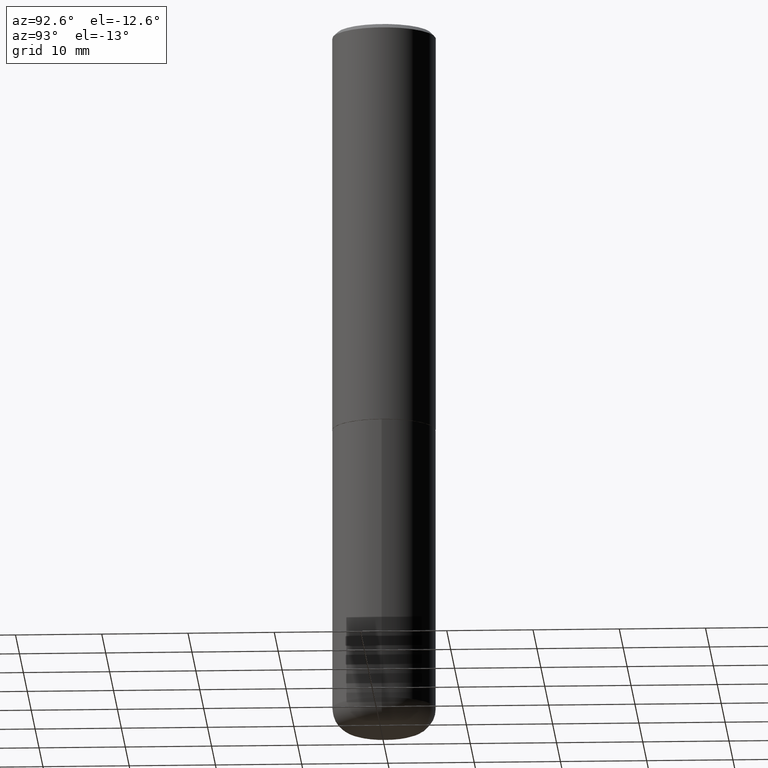
[diagram: clean part render]
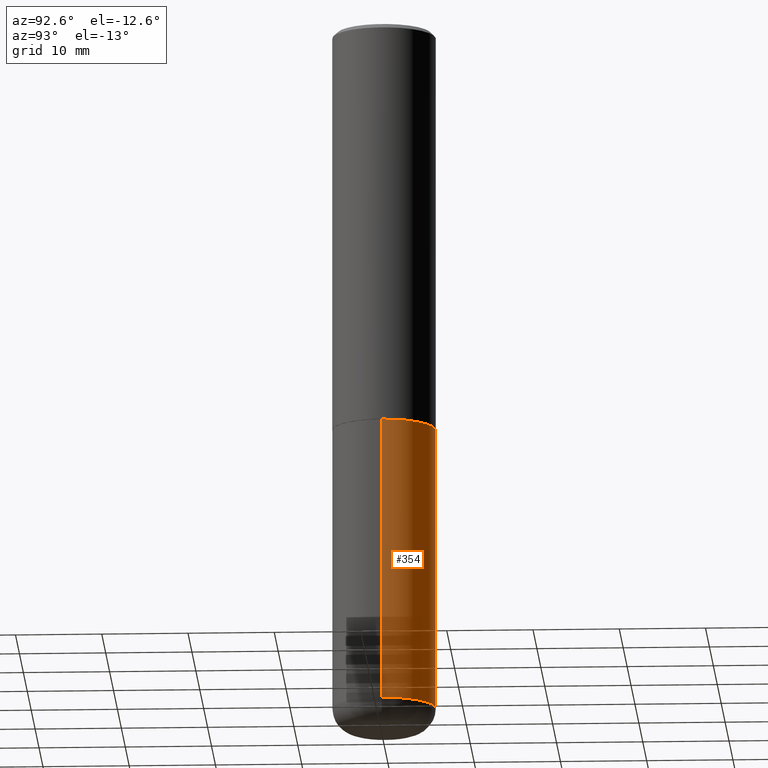
[diagram: same view with one face highlighted and labeled with its STEP entity id]
A machine part, auxiliary view. The second image highlights one B-rep face of the part: STEP entity #354.
In plain terms, the highlighted cylindrical surface (partial cylindrical patch) has radius 5.9995 mm, axis along (-0, 0, 1).
Its self-contained STEP definition (entity closure, byte-faithful):
#9 = DIRECTION ( 'NONE',  ( 1.000000000000000000, -6.982962677686266711E-15, 4.876176775795936353E-29 ) ) ;
#19 = VECTOR ( 'NONE', #371, 39.37007874015748143 ) ;
#26 = EDGE_CURVE ( 'NONE', #278, #342, #32, .T. ) ;
#32 = LINE ( 'NONE', #414, #19 ) ;
#40 = CYLINDRICAL_SURFACE ( 'NONE', #263, 0.2361999999999999933 ) ;
#41 = ORIENTED_EDGE ( 'NONE', *, *, #282, .F. ) ;
#56 = CARTESIAN_POINT ( 'NONE',  ( -0.2361999999999999933, -7.050401405242508548E-15, -1.850400000000000267 ) ) ;
#65 = CARTESIAN_POINT ( 'NONE',  ( 0.2361999999999998823, -1.264614540928986883E-14, -3.149600000000000399 ) ) ;
#68 = DIRECTION ( 'NONE',  ( -2.445468806185136597E-29, 3.491481338843145583E-15, 1.000000000000000000 ) ) ;
#83 = AXIS2_PLACEMENT_3D ( 'NONE', #126, #68, #355 ) ;
#89 = DIRECTION ( 'NONE',  ( -2.445468806185136877E-29, 3.491481338843145188E-15, 1.000000000000000000 ) ) ;
#95 = ORIENTED_EDGE ( 'NONE', *, *, #412, .T. ) ;
#96 = FACE_OUTER_BOUND ( 'NONE', #218, .T. ) ;
#101 = DIRECTION ( 'NONE',  ( 1.000000000000000000, -6.982962677686269077E-15, 0.000000000000000000 ) ) ;
#123 = CARTESIAN_POINT ( 'NONE',  ( 0.2361999999999999933, -8.110012853864854101E-15, -1.850400000000000267 ) ) ;
#126 = CARTESIAN_POINT ( 'NONE',  ( 7.702248551960706711E-29, -1.099676962482037231E-14, -3.149600000000000399 ) ) ;
#153 = VERTEX_POINT ( 'NONE', #398 ) ;
#158 = ORIENTED_EDGE ( 'NONE', *, *, #26, .F. ) ;
#167 = CARTESIAN_POINT ( 'NONE',  ( 0.000000000000000000, 0.000000000000000000, 0.000000000000000000 ) ) ;
#192 = ORIENTED_EDGE ( 'NONE', *, *, #256, .T. ) ;
#218 = EDGE_LOOP ( 'NONE', ( #95, #192, #41, #158 ) ) ;
#235 = VERTEX_POINT ( 'NONE', #56 ) ;
#247 = LINE ( 'NONE', #313, #296 ) ;
#256 = EDGE_CURVE ( 'NONE', #153, #235, #247, .T. ) ;
#263 = AXIS2_PLACEMENT_3D ( 'NONE', #167, #290, #9 ) ;
#276 = CIRCLE ( 'NONE', #408, 0.2361999999999999933 ) ;
#278 = VERTEX_POINT ( 'NONE', #65 ) ;
#282 = EDGE_CURVE ( 'NONE', #342, #235, #276, .T. ) ;
#290 = DIRECTION ( 'NONE',  ( -2.445468806185136597E-29, 3.491481338843145583E-15, 1.000000000000000000 ) ) ;
#293 = DIRECTION ( 'NONE',  ( -2.445468806185136597E-29, 3.491481338843145583E-15, 1.000000000000000000 ) ) ;
#296 = VECTOR ( 'NONE', #89, 39.37007874015748143 ) ;
#313 = CARTESIAN_POINT ( 'NONE',  ( -0.2361999999999999933, 1.678301941865356591E-15, -1.161852468318208757E-29 ) ) ;
#342 = VERTEX_POINT ( 'NONE', #123 ) ;
#353 = CIRCLE ( 'NONE', #83, 0.2362000000000000210 ) ;
#354 = ADVANCED_FACE ( 'NONE', ( #96 ), #40, .T. ) ;
#355 = DIRECTION ( 'NONE',  ( 1.000000000000000000, -6.982962677686264344E-15, 0.000000000000000000 ) ) ;
#371 = DIRECTION ( 'NONE',  ( -2.445468806185136877E-29, 3.491481338843145188E-15, 1.000000000000000000 ) ) ;
#384 = CARTESIAN_POINT ( 'NONE',  ( 4.525095478964977394E-29, -6.460637069395357576E-15, -1.850400000000000267 ) ) ;
#398 = CARTESIAN_POINT ( 'NONE',  ( -0.2361999999999998823, -9.318467682955017493E-15, -3.149600000000000399 ) ) ;
#408 = AXIS2_PLACEMENT_3D ( 'NONE', #384, #293, #101 ) ;
#412 = EDGE_CURVE ( 'NONE', #278, #153, #353, .T. ) ;
#414 = CARTESIAN_POINT ( 'NONE',  ( 0.2361999999999999933, -1.649375784469496131E-15, 1.151752954443000088E-29 ) ) ;